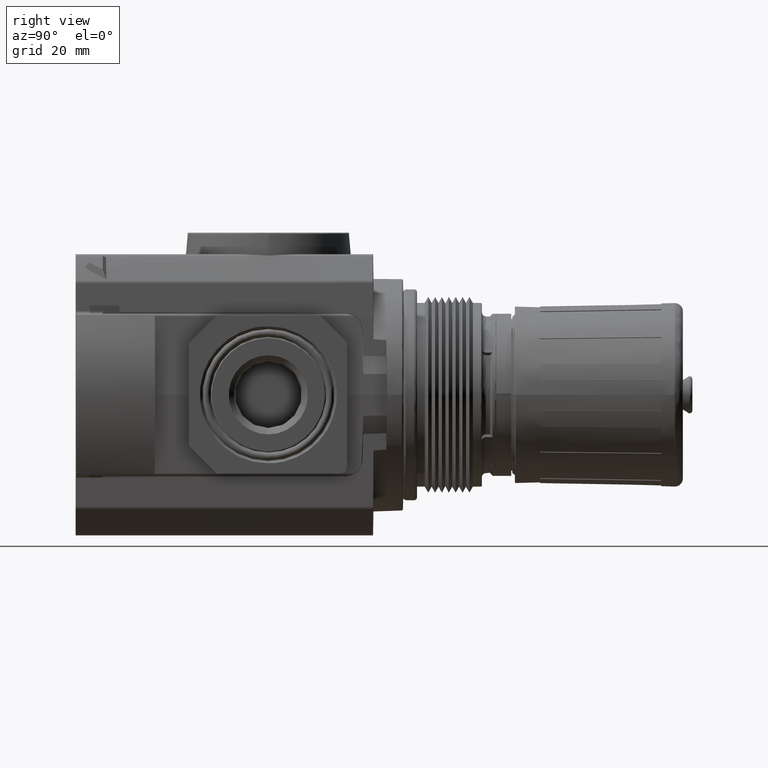
[diagram: clean part render]
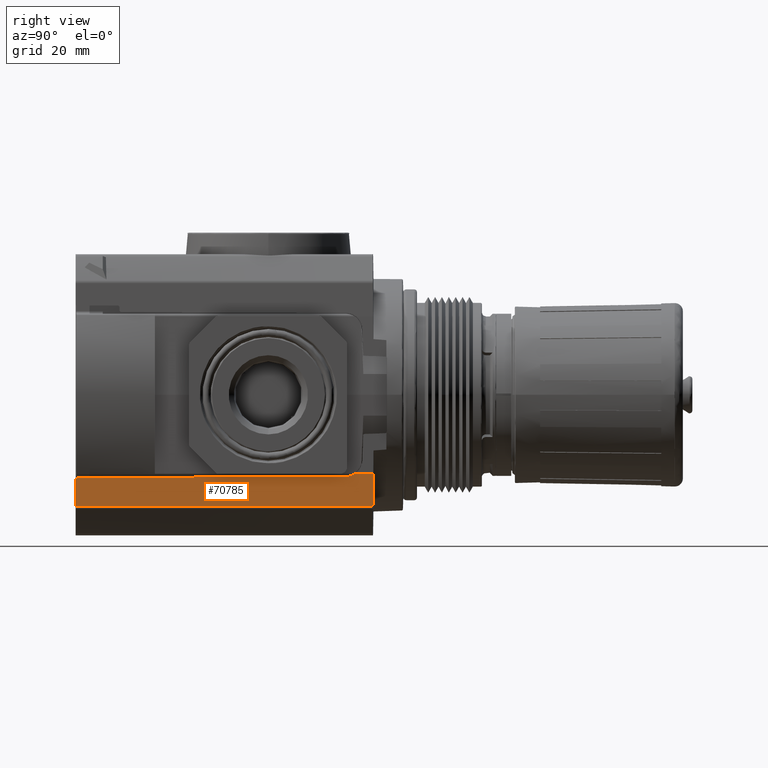
[diagram: same view with one face highlighted and labeled with its STEP entity id]
A machine part, right view. The second image highlights one B-rep face of the part: STEP entity #70785.
In plain terms, the highlighted planar face has unit normal (-0.9994, 0, 0.0349).
Its self-contained STEP definition (entity closure, byte-faithful):
#392 = CARTESIAN_POINT ( 'NONE',  ( 0.7466450391068958359, 0.006486305779014100992, -0.6034087058463726283 ) ) ;
#700 = VERTEX_POINT ( 'NONE', #73157 ) ;
#1561 = DIRECTION ( 'NONE',  ( -0.000000000000000000, -1.000000000000000000, 0.000000000000000000 ) ) ;
#1768 = DIRECTION ( 'NONE',  ( 0.0001523701159850542768, 0.9999904691125187650, 0.004363309234095917241 ) ) ;
#3358 = ORIENTED_EDGE ( 'NONE', *, *, #44077, .F. ) ;
#4055 = VERTEX_POINT ( 'NONE', #65380 ) ;
#5672 = CARTESIAN_POINT ( 'NONE',  ( 0.7460965117177242867, 0.000000000000000000, -0.6191164750952637963 ) ) ;
#6733 = VECTOR ( 'NONE', #1561, 39.37007874015748143 ) ;
#7210 = LINE ( 'NONE', #53265, #6733 ) ;
#8088 = VERTEX_POINT ( 'NONE', #31544 ) ;
#9211 = CARTESIAN_POINT ( 'NONE',  ( 0.7477814504869942924, 2.040836427265532382, -0.5708661417322835607 ) ) ;
#10381 = ORIENTED_EDGE ( 'NONE', *, *, #66991, .T. ) ;
#11101 = ORIENTED_EDGE ( 'NONE', *, *, #67969, .F. ) ;
#11743 = EDGE_CURVE ( 'NONE', #8088, #62062, #18670, .T. ) ;
#13678 = CARTESIAN_POINT ( 'NONE',  ( 0.7477814504847637433, 2.167633758418805900, -0.5708661417322835607 ) ) ;
#16563 = VECTOR ( 'NONE', #59804, 39.37007874015748143 ) ;
#18670 = B_SPLINE_CURVE_WITH_KNOTS ( 'NONE', 3,
 ( #13678, #64672, #64287, #48406 ),
 .UNSPECIFIED., .F., .F.,
 ( 4, 4 ),
 ( 0.000000000000000000, 0.006152442336831365904 ),
 .UNSPECIFIED. ) ;
#19278 = EDGE_CURVE ( 'NONE', #4055, #700, #39830, .T. ) ;
#20518 = CARTESIAN_POINT ( 'NONE',  ( 0.7477814504869942924, 2.184055118110236560, -0.5708661417322835607 ) ) ;
#21134 = EDGE_CURVE ( 'NONE', #700, #34326, #70114, .T. ) ;
#21648 = AXIS2_PLACEMENT_3D ( 'NONE', #63876, #65002, #29147 ) ;
#25070 =( BOUNDED_CURVE ( )  B_SPLINE_CURVE ( 3, ( #66606, #31851, #26197, #9211 ),
 .UNSPECIFIED., .F., .F. ) 
 B_SPLINE_CURVE_WITH_KNOTS ( ( 4, 4 ),
 ( 3.145955976719790215, 3.790073605040223281 ),
 .UNSPECIFIED. ) 
 CURVE ( )  GEOMETRIC_REPRESENTATION_ITEM ( )  RATIONAL_B_SPLINE_CURVE ( ( 1.000000000000000000, 0.9657238484545268564, 0.9657238484545268564, 1.000000000000000000 ) ) 
 REPRESENTATION_ITEM ( '' )  );
#25824 = CARTESIAN_POINT ( 'NONE',  ( 0.7469442252028118956, 1.970015981351290524, -0.5948411370249921948 ) ) ;
#26197 = CARTESIAN_POINT ( 'NONE',  ( 0.7472371377085266220, 2.020267849821679729, -0.5864532203216124007 ) ) ;
#26943 = CARTESIAN_POINT ( 'NONE',  ( 0.7466464398605793251, 0.01567931796401973374, -0.6033685935091104291 ) ) ;
#28686 = DIRECTION ( 'NONE',  ( -0.03489949670249431479, 0.000000000000000000, -0.9993908270190959842 ) ) ;
#29147 = DIRECTION ( 'NONE',  ( 0.03489949670250109409, 0.000000000000000000, 0.9993908270190957621 ) ) ;
#31544 = CARTESIAN_POINT ( 'NONE',  ( 0.7477814504847637433, 2.167633758418805900, -0.5708661417322835607 ) ) ;
#31851 = CARTESIAN_POINT ( 'NONE',  ( 0.7469481574838234827, 1.995823164788244730, -0.5947285312299623872 ) ) ;
#32600 = LINE ( 'NONE', #20518, #16563 ) ;
#32693 = CARTESIAN_POINT ( 'NONE',  ( 0.7393285672310905277, 0.000000000000000000, -0.8129250476192597663 ) ) ;
#34326 = VERTEX_POINT ( 'NONE', #25824 ) ;
#38116 = VECTOR ( 'NONE', #28686, 39.37007874015748143 ) ;
#39830 =( BOUNDED_CURVE ( )  B_SPLINE_CURVE ( 3, ( #49605, #61675, #392, #26943 ),
 .UNSPECIFIED., .F., .T. ) 
 B_SPLINE_CURVE_WITH_KNOTS ( ( 4, 4 ),
 ( 4.712388980384687898, 6.278821984049599791 ),
 .UNSPECIFIED. ) 
 CURVE ( )  GEOMETRIC_REPRESENTATION_ITEM ( )  RATIONAL_B_SPLINE_CURVE ( ( 1.000000000000000000, 0.8057651765739441974, 0.8057651765739441974, 1.000000000000000000 ) ) 
 REPRESENTATION_ITEM ( '' )  );
#40208 = CARTESIAN_POINT ( 'NONE',  ( 0.7393285676790187777, 2.164874758820759304, -0.8129250347922092335 ) ) ;
#40369 = LINE ( 'NONE', #5672, #38116 ) ;
#41966 = PLANE ( 'NONE',  #21648 ) ;
#43514 = ORIENTED_EDGE ( 'NONE', *, *, #19278, .F. ) ;
#44077 = EDGE_CURVE ( 'NONE', #62062, #46643, #7210, .T. ) ;
#45285 = EDGE_CURVE ( 'NONE', #34326, #54887, #25070, .T. ) ;
#46643 = VERTEX_POINT ( 'NONE', #32693 ) ;
#48406 = CARTESIAN_POINT ( 'NONE',  ( 0.7393285676790187777, 2.164874758820759304, -0.8129250347922092335 ) ) ;
#48427 = ORIENTED_EDGE ( 'NONE', *, *, #45285, .F. ) ;
#49319 = ORIENTED_EDGE ( 'NONE', *, *, #21134, .F. ) ;
#49605 = CARTESIAN_POINT ( 'NONE',  ( 0.7460965117177250638, 0.000000000000000000, -0.6191164750952637963 ) ) ;
#53265 = CARTESIAN_POINT ( 'NONE',  ( 0.7393285672310906387, 2.184055118110236560, -0.8129250476192599884 ) ) ;
#54887 = VERTEX_POINT ( 'NONE', #63814 ) ;
#55976 = VECTOR ( 'NONE', #1768, 39.37007874015748143 ) ;
#59142 = ORIENTED_EDGE ( 'NONE', *, *, #11743, .F. ) ;
#59804 = DIRECTION ( 'NONE',  ( 0.000000000000000000, 1.000000000000000000, -0.000000000000000000 ) ) ;
#61675 = CARTESIAN_POINT ( 'NONE',  ( 0.7464175418331484568, -1.801897053917068713E-17, -0.6099233753985748852 ) ) ;
#62062 = VERTEX_POINT ( 'NONE', #40208 ) ;
#63814 = CARTESIAN_POINT ( 'NONE',  ( 0.7477814504869942924, 2.040836427265532382, -0.5708661417322835607 ) ) ;
#63876 = CARTESIAN_POINT ( 'NONE',  ( 0.7677165354330708347, 2.184055118110236560, 0.000000000000000000 ) ) ;
#64287 = CARTESIAN_POINT ( 'NONE',  ( 0.7421461584179367410, 2.165883579877064591, -0.7322397927450228217 ) ) ;
#64643 = FACE_OUTER_BOUND ( 'NONE', #72456, .T. ) ;
#64672 = CARTESIAN_POINT ( 'NONE',  ( 0.7449637839757600188, 2.166818229680429031, -0.6515535536147775142 ) ) ;
#65002 = DIRECTION ( 'NONE',  ( -0.9993908270190957621, 0.000000000000000000, 0.03489949670250109409 ) ) ;
#65380 = CARTESIAN_POINT ( 'NONE',  ( 0.7460965117177250638, 0.000000000000000000, -0.6191164750952637963 ) ) ;
#65575 = CARTESIAN_POINT ( 'NONE',  ( 0.7466464398605791031, 0.01567931796401984823, -0.6033685935091102071 ) ) ;
#66606 = CARTESIAN_POINT ( 'NONE',  ( 0.7469442252028118956, 1.970015981351290524, -0.5948411370249921948 ) ) ;
#66991 = EDGE_CURVE ( 'NONE', #4055, #46643, #40369, .T. ) ;
#67969 = EDGE_CURVE ( 'NONE', #54887, #8088, #32600, .T. ) ;
#70114 = LINE ( 'NONE', #65575, #55976 ) ;
#70785 = ADVANCED_FACE ( 'NONE', ( #64643 ), #41966, .F. ) ;
#72456 = EDGE_LOOP ( 'NONE', ( #11101, #48427, #49319, #43514, #10381, #3358, #59142 ) ) ;
#73157 = CARTESIAN_POINT ( 'NONE',  ( 0.7466464398605793251, 0.01567931796401973374, -0.6033685935091104291 ) ) ;